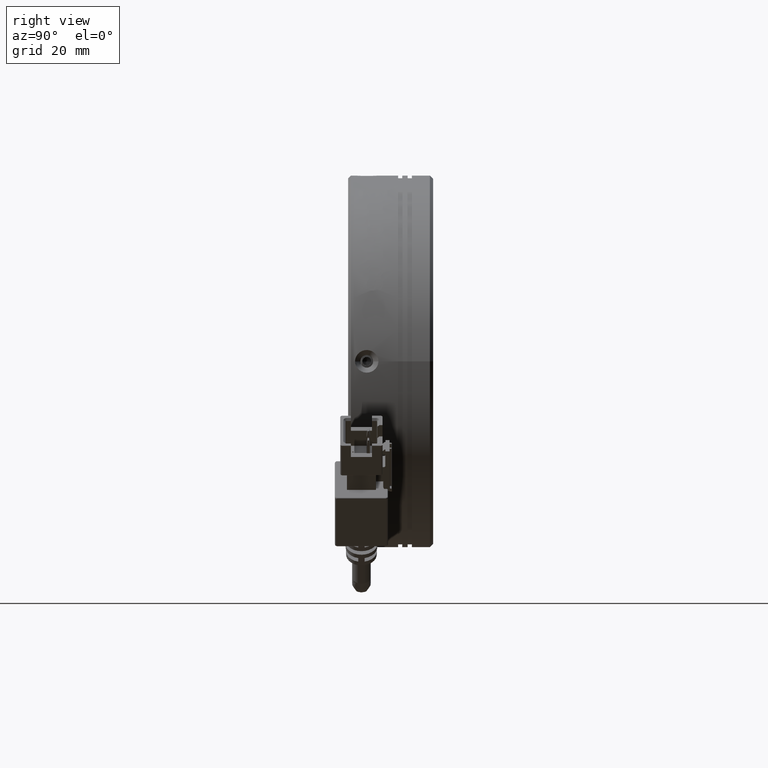
[diagram: clean part render]
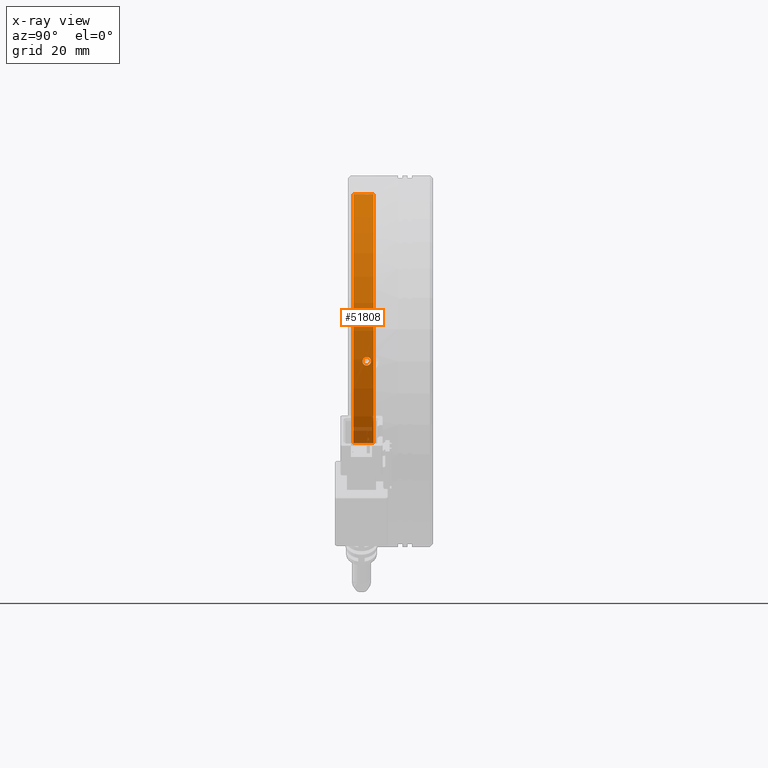
[diagram: x-ray — body ghosted, one internal face saturated and labeled with its STEP entity id]
A machine part, right view, then the same camera in x-ray: the body is ghosted and one INTERNAL B-rep face — a face not visible from any outside direction — is saturated and labeled: STEP entity #51808.
In plain terms, the highlighted cylindrical surface (partial cylindrical patch) has radius 31.5 mm, axis along (-0, 1, -0).
Its self-contained STEP definition (entity closure, byte-faithful):
#975 = EDGE_LOOP ( 'NONE', ( #83508, #34036 ) ) ;
#1049 = DIRECTION ( 'NONE',  ( 0.0000000000000000000, 0.0000000000000000000, 1.000000000000000000 ) ) ;
#2800 = CARTESIAN_POINT ( 'NONE',  ( 2.567196212674958100, 0.5201858815979745200, -15.37957905352555200 ) ) ;
#5022 = DIRECTION ( 'NONE',  ( -0.0000000000000000000, 1.000000000000000000, -0.0000000000000000000 ) ) ;
#5961 = LINE ( 'NONE', #52497, #73603 ) ;
#6270 = CARTESIAN_POINT ( 'NONE',  ( 6.567247637299566100, -0.9892296674340348400, -0.7791928881924080600 ) ) ;
#7631 = CARTESIAN_POINT ( 'NONE',  ( -24.28351549794466600, -1.271508472163057200, 31.49359173264575800 ) ) ;
#9246 = CARTESIAN_POINT ( 'NONE',  ( 6.569132055974182400, -0.3766509135503731700, 0.6988961721453809100 ) ) ;
#11548 = ORIENTED_EDGE ( 'NONE', *, *, #39685, .F. ) ;
#12933 = CARTESIAN_POINT ( 'NONE',  ( 6.570455600355741100, -1.271714025342118400, -0.6394735314233894700 ) ) ;
#14240 = CARTESIAN_POINT ( 'NONE',  ( -24.71184306092554900, -1.579814118402091100, 31.50000000000000700 ) ) ;
#14708 = DIRECTION ( 'NONE',  ( -0.0000000000000000000, 1.000000000000000000, -0.0000000000000000000 ) ) ;
#15868 = CARTESIAN_POINT ( 'NONE',  ( 6.574432026029294100, -0.06652789305848964800, 0.4180794471028770300 ) ) ;
#16693 = CARTESIAN_POINT ( 'NONE',  ( 6.566700303266906700, -0.7798141184019933300, -0.8000000000000983000 ) ) ;
#17604 = CARTESIAN_POINT ( 'NONE',  ( -24.52015168709426300, -0.08082387977149985100, 31.49757100603587600 ) ) ;
#18584 = VERTEX_POINT ( 'NONE', #16693 ) ;
#18617 = AXIS2_PLACEMENT_3D ( 'NONE', #33430, #79104, #40008 ) ;
#19565 = CARTESIAN_POINT ( 'NONE',  ( 6.576857074747869600, -1.579672474748767600, -0.2092206139008755700 ) ) ;
#19732 = EDGE_LOOP ( 'NONE', ( #11548, #39273, #64045, #63883, #22617, #36918, #75645 ) ) ;
#19903 = DIRECTION ( 'NONE',  ( -0.0000000000000000000, 1.000000000000000000, -0.0000000000000000000 ) ) ;
#20610 = CARTESIAN_POINT ( 'NONE',  ( -24.12313932795384700, -0.7798141184019933300, 31.48983963122074000 ) ) ;
#21005 = EDGE_CURVE ( 'NONE', #18584, #26926, #55370, .T. ) ;
#21017 = CARTESIAN_POINT ( 'NONE',  ( 2.567196212674958100, -3.279814118402002400, -15.37957905352554800 ) ) ;
#21907 = VERTEX_POINT ( 'NONE', #70085 ) ;
#22240 = DIRECTION ( 'NONE',  ( 0.0000000000000000000, 0.0000000000000000000, 1.000000000000000000 ) ) ;
#22500 = CARTESIAN_POINT ( 'NONE',  ( 6.576862463693000600, 0.02025642770802669700, -0.1037968454333851000 ) ) ;
#22617 = ORIENTED_EDGE ( 'NONE', *, *, #55098, .F. ) ;
#24251 = CARTESIAN_POINT ( 'NONE',  ( -24.21007687827044200, -0.3614006040602970000, 31.49227410722713200 ) ) ;
#24260 = FACE_OUTER_BOUND ( 'NONE', #19732, .T. ) ;
#24994 = VECTOR ( 'NONE', #5022, 1000.000000000000000 ) ;
#25179 = VERTEX_POINT ( 'NONE', #40200 ) ;
#26200 = CARTESIAN_POINT ( 'NONE',  ( 6.576318509684369900, -1.559201610334653500, 0.2086567342839958900 ) ) ;
#26715 = EDGE_CURVE ( 'NONE', #76823, #55050, #62562, .T. ) ;
#26926 = VERTEX_POINT ( 'NONE', #35826 ) ;
#29107 = CARTESIAN_POINT ( 'NONE',  ( 6.574439679603653300, -0.08046861383332551400, -0.4023659535582995700 ) ) ;
#30857 = CARTESIAN_POINT ( 'NONE',  ( -24.12313932795384700, -0.7798141184019933300, 31.48983963122074000 ) ) ;
#32259 = CARTESIAN_POINT ( 'NONE',  ( -24.92313932795383400, -3.279814118402002400, 31.50000000000000700 ) ) ;
#32816 = CARTESIAN_POINT ( 'NONE',  ( 6.573129320693244200, -1.420519371178910600, 0.4905563302620127900 ) ) ;
#33430 = CARTESIAN_POINT ( 'NONE',  ( -24.92313932795383400, -3.279814118402002400, 0.0000000000000000000 ) ) ;
#33468 = CYLINDRICAL_SURFACE ( 'NONE', #64935, 31.50000000000000700 ) ;
#33834 = CARTESIAN_POINT ( 'NONE',  ( -24.12313932795385100, -0.8854620899752421200, 31.48983963122075400 ) ) ;
#34036 = ORIENTED_EDGE ( 'NONE', *, *, #48341, .T. ) ;
#34306 = CARTESIAN_POINT ( 'NONE',  ( 2.567196212674958100, 45.88112954314367200, -15.37957905352555300 ) ) ;
#34417 = EDGE_CURVE ( 'NONE', #83118, #75287, #47335, .T. ) ;
#34911 = EDGE_CURVE ( 'NONE', #75287, #21907, #64678, .T. ) ;
#35156 = CARTESIAN_POINT ( 'NONE',  ( -24.92313932795383400, 45.88112954314367200, 0.0000000000000000000 ) ) ;
#35435 = CARTESIAN_POINT ( 'NONE',  ( 6.566700303266906700, -0.7798141184019932200, 0.7999999999998783600 ) ) ;
#35720 = CARTESIAN_POINT ( 'NONE',  ( 6.569106293692788000, -0.3629304093518074800, -0.7147047708764078200 ) ) ;
#35826 = CARTESIAN_POINT ( 'NONE',  ( 6.566700303266906700, -0.7798141184019932200, 0.7999999999998783600 ) ) ;
#36918 = ORIENTED_EDGE ( 'NONE', *, *, #50486, .T. ) ;
#36945 = CARTESIAN_POINT ( 'NONE',  ( -24.92313932795383400, -1.579814118401982000, 31.50000000000000700 ) ) ;
#37171 = CARTESIAN_POINT ( 'NONE',  ( -24.92313932795383400, 0.02018588159799560000, 31.50000000000000700 ) ) ;
#37886 = CARTESIAN_POINT ( 'NONE',  ( -24.92313932795383400, 45.88112954314367200, 31.50000000000000700 ) ) ;
#38944 = B_SPLINE_CURVE_WITH_KNOTS ( 'NONE', 3,
 ( #37171, #76276, #56792, #17604, #63400, #24251, #69988, #30857 ),
 .UNSPECIFIED., .F., .F.,
 ( 4, 2, 2, 4 ),
 ( 0.001249777534140651100, 0.001562222077409172200, 0.001874666620677693600, 0.002499555707214736100 ),
 .UNSPECIFIED. ) ;
#39273 = ORIENTED_EDGE ( 'NONE', *, *, #55107, .T. ) ;
#39378 = CARTESIAN_POINT ( 'NONE',  ( 6.566700303266915600, -0.9912111206865977800, 0.7999999999997646800 ) ) ;
#39685 = EDGE_CURVE ( 'NONE', #77896, #55050, #77144, .T. ) ;
#40008 = DIRECTION ( 'NONE',  ( 0.0000000000000000000, 0.0000000000000000000, 1.000000000000000000 ) ) ;
#40200 = CARTESIAN_POINT ( 'NONE',  ( -24.92313932795383400, 0.02018588159799560000, 31.50000000000000700 ) ) ;
#40417 = CARTESIAN_POINT ( 'NONE',  ( -24.14392541945789700, -0.9891274642955584200, 31.49038639855517700 ) ) ;
#40502 = DIRECTION ( 'NONE',  ( 0.0000000000000000000, -1.000000000000000000, 0.0000000000000000000 ) ) ;
#41605 = AXIS2_PLACEMENT_3D ( 'NONE', #79609, #40502, #1049 ) ;
#42290 = CARTESIAN_POINT ( 'NONE',  ( 6.566700303266906700, -0.7798141184019933300, -0.8000000000000983000 ) ) ;
#45644 = CARTESIAN_POINT ( 'NONE',  ( 6.566700303266907600, -0.8855125998908002200, -0.8000000000000985200 ) ) ;
#45859 = CARTESIAN_POINT ( 'NONE',  ( -24.12313932795384700, -0.7798141184019933300, 31.48983963122074000 ) ) ;
#46923 = CARTESIAN_POINT ( 'NONE',  ( -24.22414908730136000, -1.182801755228799900, 31.49226924959482700 ) ) ;
#47335 = LINE ( 'NONE', #34306, #62705 ) ;
#48341 = EDGE_CURVE ( 'NONE', #26926, #18584, #61968, .T. ) ;
#48524 = CARTESIAN_POINT ( 'NONE',  ( 6.567247637299572300, -0.5703985693699121800, 0.7791928881921792400 ) ) ;
#50486 = EDGE_CURVE ( 'NONE', #25179, #76823, #38944, .T. ) ;
#51808 = ADVANCED_FACE ( 'NONE', ( #24260, #56951 ), #33468, .T. ) ;
#52143 = CARTESIAN_POINT ( 'NONE',  ( 6.569132055974179700, -1.182977323253560100, -0.6988961721456302700 ) ) ;
#52497 = CARTESIAN_POINT ( 'NONE',  ( -24.92313932795383400, 45.88112954314367200, 31.50000000000000700 ) ) ;
#53451 = CARTESIAN_POINT ( 'NONE',  ( -24.50472580705504900, -1.492876563965897400, 31.49756634394919900 ) ) ;
#55048 = CARTESIAN_POINT ( 'NONE',  ( 6.570455600355737500, -0.2879142114617965800, 0.6394735314231169100 ) ) ;
#55050 = VERTEX_POINT ( 'NONE', #36945 ) ;
#55098 = EDGE_CURVE ( 'NONE', #25179, #21907, #5961, .T. ) ;
#55107 = EDGE_CURVE ( 'NONE', #77896, #83118, #56208, .T. ) ;
#55370 = B_SPLINE_CURVE_WITH_KNOTS ( 'NONE', 3,
 ( #71076, #45644, #6270, #52143, #12933, #58726, #19565, #65330, #26200, #71902, #32816, #78482, #39378, #85079 ),
 .UNSPECIFIED., .F., .F.,
 ( 4, 2, 2, 2, 2, 2, 4 ),
 ( 0.002500750096578002900, 0.002813343916772957300, 0.003125937736967912100, 0.003751125377357820500, 0.004063719197552774800, 0.004376313017747729200, 0.005001500658137638000 ),
 .UNSPECIFIED. ) ;
#56208 = CIRCLE ( 'NONE', #18617, 31.50000000000000700 ) ;
#56792 = CARTESIAN_POINT ( 'NONE',  ( -24.71382598151274500, -0.0006002097813167900100, 31.49945342767014700 ) ) ;
#56951 = FACE_BOUND ( 'NONE', #975, .T. ) ;
#58726 = CARTESIAN_POINT ( 'NONE',  ( 6.574432026029295900, -1.493100343745424200, -0.4180794471032067100 ) ) ;
#60039 = CARTESIAN_POINT ( 'NONE',  ( -24.92313932795383400, -1.579814118401982000, 31.50000000000000700 ) ) ;
#61658 = CARTESIAN_POINT ( 'NONE',  ( 6.576857074747874100, 0.02004423794483546300, 0.2092206139004913800 ) ) ;
#61968 = B_SPLINE_CURVE_WITH_KNOTS ( 'NONE', 3,
 ( #35435, #67971, #48524, #9246, #55048, #15868, #61658, #22500, #68242, #29107, #74819, #35720, #81413, #42290 ),
 .UNSPECIFIED., .F., .F.,
 ( 4, 2, 2, 2, 2, 2, 4 ),
 ( 4.242037676328177800E-016, 0.0003125937620726215400, 0.0006251875241448189400, 0.001250375048289213500, 0.001562968810361410900, 0.001875562572433608200, 0.002500750096578002900 ),
 .UNSPECIFIED. ) ;
#62562 = B_SPLINE_CURVE_WITH_KNOTS ( 'NONE', 3,
 ( #20610, #33834, #40417, #46923, #7631, #53451, #14240, #60039 ),
 .UNSPECIFIED., .F., .F.,
 ( 4, 2, 2, 4 ),
 ( 0.002499555707214736100, 0.002812000410402850000, 0.003124445113590964300, 0.003749334519967191700 ),
 .UNSPECIFIED. ) ;
#62705 = VECTOR ( 'NONE', #14708, 1000.000000000000000 ) ;
#63400 = CARTESIAN_POINT ( 'NONE',  ( -24.43144496922888500, -0.1401902921329064900, 31.49624871763409600 ) ) ;
#63883 = ORIENTED_EDGE ( 'NONE', *, *, #34911, .T. ) ;
#64045 = ORIENTED_EDGE ( 'NONE', *, *, #34417, .T. ) ;
#64678 = CIRCLE ( 'NONE', #41605, 31.50000000000000700 ) ;
#64935 = AXIS2_PLACEMENT_3D ( 'NONE', #35156, #80867, #22240 ) ;
#65330 = CARTESIAN_POINT ( 'NONE',  ( 6.576862463693002400, -1.579884664512040300, 0.1037968454329345800 ) ) ;
#67971 = CARTESIAN_POINT ( 'NONE',  ( 6.566700303266912000, -0.6741156369135986600, 0.7999999999999353200 ) ) ;
#68242 = CARTESIAN_POINT ( 'NONE',  ( 6.576318509684369000, -0.0004266264693919979700, -0.2086567342844486700 ) ) ;
#69988 = CARTESIAN_POINT ( 'NONE',  ( -24.12313932795384400, -0.5685182834037889600, 31.48983963122075400 ) ) ;
#70085 = CARTESIAN_POINT ( 'NONE',  ( -24.92313932795383400, 0.5201858815979815100, 31.50000000000000700 ) ) ;
#71076 = CARTESIAN_POINT ( 'NONE',  ( 6.566700303266906700, -0.7798141184019933300, -0.8000000000000983000 ) ) ;
#71902 = CARTESIAN_POINT ( 'NONE',  ( 6.574439679603659500, -1.479159622970805300, 0.4023659535578212900 ) ) ;
#73603 = VECTOR ( 'NONE', #19903, 1000.000000000000000 ) ;
#74819 = CARTESIAN_POINT ( 'NONE',  ( 6.573129320693235300, -0.1391088656252507700, -0.4905563302624682500 ) ) ;
#75287 = VERTEX_POINT ( 'NONE', #2800 ) ;
#75645 = ORIENTED_EDGE ( 'NONE', *, *, #26715, .T. ) ;
#76276 = CARTESIAN_POINT ( 'NONE',  ( -24.81749135659914500, 0.02018588159799539900, 31.50000000000000700 ) ) ;
#76823 = VERTEX_POINT ( 'NONE', #45859 ) ;
#77144 = LINE ( 'NONE', #37886, #24994 ) ;
#77896 = VERTEX_POINT ( 'NONE', #32259 ) ;
#78482 = CARTESIAN_POINT ( 'NONE',  ( 6.569106293692797700, -1.196697827452518200, 0.7147047708759698400 ) ) ;
#79104 = DIRECTION ( 'NONE',  ( -0.0000000000000000000, 1.000000000000000000, -0.0000000000000000000 ) ) ;
#79609 = CARTESIAN_POINT ( 'NONE',  ( -24.92313932795383400, 0.5201858815979815100, 0.0000000000000000000 ) ) ;
#80867 = DIRECTION ( 'NONE',  ( -0.0000000000000000000, 1.000000000000000000, -0.0000000000000000000 ) ) ;
#81413 = CARTESIAN_POINT ( 'NONE',  ( 6.566700303266907600, -0.5684171947308961400, -0.8000000000000983000 ) ) ;
#83118 = VERTEX_POINT ( 'NONE', #21017 ) ;
#83508 = ORIENTED_EDGE ( 'NONE', *, *, #21005, .T. ) ;
#85079 = CARTESIAN_POINT ( 'NONE',  ( 6.566700303266906700, -0.7798141184019932200, 0.7999999999998783600 ) ) ;